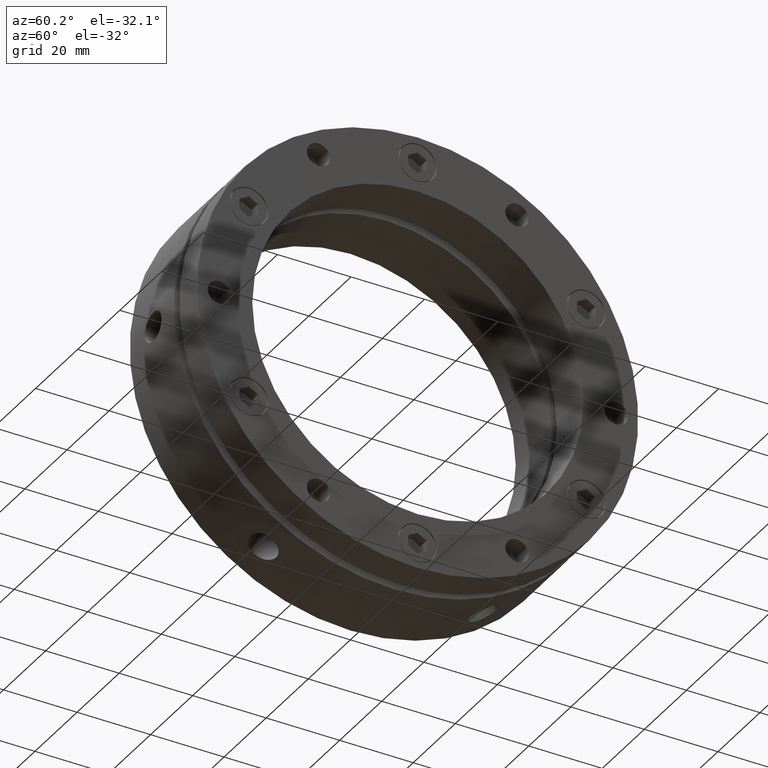
[diagram: clean part render]
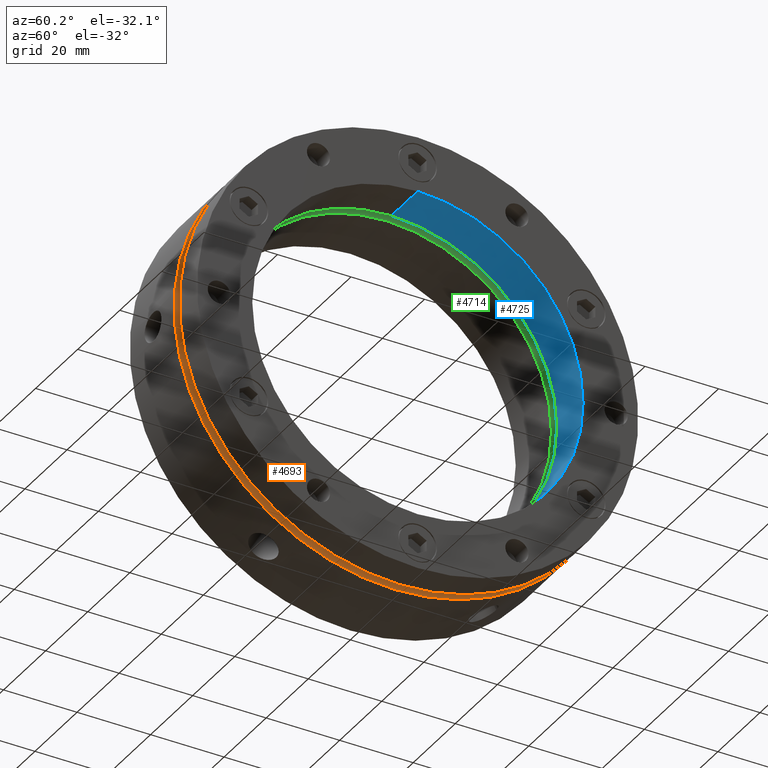
[diagram: same view with three faces highlighted in distinct colors, each labeled with its STEP entity id]
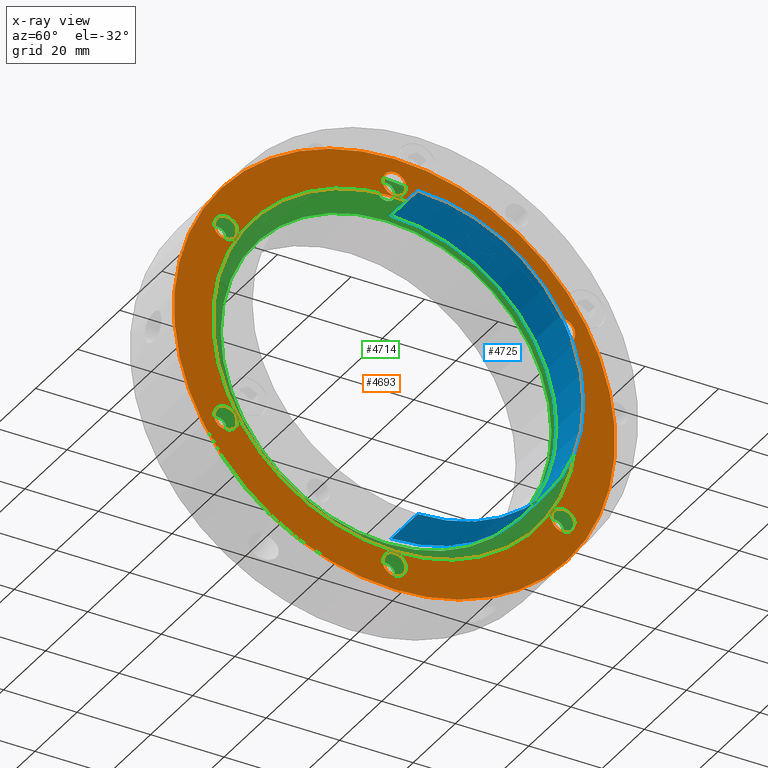
[diagram: x-ray of the same camera — body ghosted, the three highlighted faces saturated]
A machine part, auxiliary view with three faces highlighted in distinct colors.
The next image is the same camera in x-ray (body ghosted, the three faces saturated) — at least one of them is partly hidden behind the body in this view.
Their STEP definitions:

[orange] entity #4693 — the highlighted planar face has unit normal (-1, 0, 0).
#28 = CARTESIAN_POINT ( 'NONE',  ( 20.99999999999999300, 0.0000000000000000000, 0.0000000000000000000 ) ) ;
#29 = DIRECTION ( 'NONE',  ( 1.000000000000000000, -0.0000000000000000000, -0.0000000000000000000 ) ) ;
#30 = DIRECTION ( 'NONE',  ( 0.0000000000000000000, 0.0000000000000000000, 1.000000000000000000 ) ) ;
#42 = CARTESIAN_POINT ( 'NONE',  ( 20.99999999999999300, 0.0000000000000000000, 53.00000000000002800 ) ) ;
#43 = DIRECTION ( 'NONE',  ( 1.000000000000000000, 0.0000000000000000000, 0.0000000000000000000 ) ) ;
#44 = DIRECTION ( 'NONE',  ( 0.0000000000000000000, 0.0000000000000000000, -1.000000000000000000 ) ) ;
#52 = CARTESIAN_POINT ( 'NONE',  ( 20.99999999999999300, -45.89934640057526800, 26.50000000000001800 ) ) ;
#53 = DIRECTION ( 'NONE',  ( 1.000000000000000000, 0.0000000000000000000, 0.0000000000000000000 ) ) ;
#54 = DIRECTION ( 'NONE',  ( 0.0000000000000000000, 0.0000000000000000000, -1.000000000000000000 ) ) ;
#62 = CARTESIAN_POINT ( 'NONE',  ( 20.99999999999999300, -45.89934640057527600, -26.50000000000000400 ) ) ;
#63 = DIRECTION ( 'NONE',  ( 1.000000000000000000, 0.0000000000000000000, 0.0000000000000000000 ) ) ;
#64 = DIRECTION ( 'NONE',  ( 0.0000000000000000000, 0.0000000000000000000, -1.000000000000000000 ) ) ;
#72 = CARTESIAN_POINT ( 'NONE',  ( 20.99999999999999300, -8.881783999999999800E-015, -53.00000000000002800 ) ) ;
#73 = DIRECTION ( 'NONE',  ( 1.000000000000000000, 0.0000000000000000000, 0.0000000000000000000 ) ) ;
#74 = DIRECTION ( 'NONE',  ( 0.0000000000000000000, 0.0000000000000000000, -1.000000000000000000 ) ) ;
#82 = CARTESIAN_POINT ( 'NONE',  ( 20.99999999999999300, 45.89934640057525400, -26.50000000000003900 ) ) ;
#83 = DIRECTION ( 'NONE',  ( 1.000000000000000000, 0.0000000000000000000, 0.0000000000000000000 ) ) ;
#84 = DIRECTION ( 'NONE',  ( 0.0000000000000000000, 0.0000000000000000000, -1.000000000000000000 ) ) ;
#94 = CARTESIAN_POINT ( 'NONE',  ( 20.99999999999999300, 45.89934640057529700, 26.49999999999997900 ) ) ;
#95 = DIRECTION ( 'NONE',  ( 1.000000000000000000, 0.0000000000000000000, 0.0000000000000000000 ) ) ;
#96 = DIRECTION ( 'NONE',  ( 0.0000000000000000000, 0.0000000000000000000, -1.000000000000000000 ) ) ;
#209 = CARTESIAN_POINT ( 'NONE',  ( 20.99999999999999300, 0.0000000000000000000, 0.0000000000000000000 ) ) ;
#210 = DIRECTION ( 'NONE',  ( -1.000000000000000000, -0.0000000000000000000, -0.0000000000000000000 ) ) ;
#211 = DIRECTION ( 'NONE',  ( 0.0000000000000000000, 0.0000000000000000000, -1.000000000000000000 ) ) ;
#369 = CIRCLE ( 'NONE', #911, 3.249999999999999600 ) ;
#373 = CIRCLE ( 'NONE', #915, 3.250000000000002700 ) ;
#387 = CIRCLE ( 'NONE', #917, 49.50000000000000000 ) ;
#394 = CIRCLE ( 'NONE', #913, 3.249999999999999600 ) ;
#535 = EDGE_LOOP ( 'NONE', ( #634, #633 ) ) ;
#536 = EDGE_LOOP ( 'NONE', ( #640, #639 ) ) ;
#543 = EDGE_LOOP ( 'NONE', ( #638, #637 ) ) ;
#544 = EDGE_LOOP ( 'NONE', ( #636, #635 ) ) ;
#551 = EDGE_LOOP ( 'NONE', ( #632, #631 ) ) ;
#552 = EDGE_LOOP ( 'NONE', ( #630, #629 ) ) ;
#553 = EDGE_LOOP ( 'NONE', ( #628, #627 ) ) ;
#554 = EDGE_LOOP ( 'NONE', ( #626, #625 ) ) ;
#625 = ORIENTED_EDGE ( 'NONE', *, *, #4242, .F. ) ;
#626 = ORIENTED_EDGE ( 'NONE', *, *, #4184, .F. ) ;
#627 = ORIENTED_EDGE ( 'NONE', *, *, #957, .F. ) ;
#628 = ORIENTED_EDGE ( 'NONE', *, *, #4322, .F. ) ;
#629 = ORIENTED_EDGE ( 'NONE', *, *, #953, .F. ) ;
#630 = ORIENTED_EDGE ( 'NONE', *, *, #4323, .F. ) ;
#631 = ORIENTED_EDGE ( 'NONE', *, *, #949, .F. ) ;
#632 = ORIENTED_EDGE ( 'NONE', *, *, #4324, .F. ) ;
#633 = ORIENTED_EDGE ( 'NONE', *, *, #945, .F. ) ;
#634 = ORIENTED_EDGE ( 'NONE', *, *, #4325, .F. ) ;
#635 = ORIENTED_EDGE ( 'NONE', *, *, #941, .F. ) ;
#636 = ORIENTED_EDGE ( 'NONE', *, *, #4326, .F. ) ;
#637 = ORIENTED_EDGE ( 'NONE', *, *, #937, .F. ) ;
#638 = ORIENTED_EDGE ( 'NONE', *, *, #4327, .F. ) ;
#639 = ORIENTED_EDGE ( 'NONE', *, *, #931, .F. ) ;
#640 = ORIENTED_EDGE ( 'NONE', *, *, #4328, .F. ) ;
#679 = AXIS2_PLACEMENT_3D ( 'NONE', #3179, #3177, #3183 ) ;
#808 = AXIS2_PLACEMENT_3D ( 'NONE', #1609, #1610, #1611 ) ;
#809 = AXIS2_PLACEMENT_3D ( 'NONE', #1606, #1607, #1608 ) ;
#810 = AXIS2_PLACEMENT_3D ( 'NONE', #1603, #1604, #1605 ) ;
#811 = AXIS2_PLACEMENT_3D ( 'NONE', #1600, #1601, #1602 ) ;
#812 = AXIS2_PLACEMENT_3D ( 'NONE', #1597, #1598, #1599 ) ;
#813 = AXIS2_PLACEMENT_3D ( 'NONE', #1594, #1595, #1596 ) ;
#814 = AXIS2_PLACEMENT_3D ( 'NONE', #1591, #1592, #1593 ) ;
#871 = AXIS2_PLACEMENT_3D ( 'NONE', #1276, #1277, #1278 ) ;
#898 = AXIS2_PLACEMENT_3D ( 'NONE', #209, #210, #211 ) ;
#905 = AXIS2_PLACEMENT_3D ( 'NONE', #94, #95, #96 ) ;
#907 = AXIS2_PLACEMENT_3D ( 'NONE', #82, #83, #84 ) ;
#909 = AXIS2_PLACEMENT_3D ( 'NONE', #72, #73, #74 ) ;
#911 = AXIS2_PLACEMENT_3D ( 'NONE', #62, #63, #64 ) ;
#913 = AXIS2_PLACEMENT_3D ( 'NONE', #52, #53, #54 ) ;
#915 = AXIS2_PLACEMENT_3D ( 'NONE', #42, #43, #44 ) ;
#917 = AXIS2_PLACEMENT_3D ( 'NONE', #28, #29, #30 ) ;
#931 = EDGE_CURVE ( 'NONE', #4503, #4502, #387, .T. ) ;
#937 = EDGE_CURVE ( 'NONE', #4478, #4476, #373, .T. ) ;
#941 = EDGE_CURVE ( 'NONE', #4482, #4427, #394, .T. ) ;
#945 = EDGE_CURVE ( 'NONE', #4493, #4357, #369, .T. ) ;
#949 = EDGE_CURVE ( 'NONE', #4375, #4421, #3992, .T. ) ;
#953 = EDGE_CURVE ( 'NONE', #4404, #4403, #3978, .T. ) ;
#957 = EDGE_CURVE ( 'NONE', #4389, #4384, #3982, .T. ) ;
#1276 = CARTESIAN_POINT ( 'NONE',  ( 20.99999999999999300, 0.0000000000000000000, 0.0000000000000000000 ) ) ;
#1277 = DIRECTION ( 'NONE',  ( -1.000000000000000000, -0.0000000000000000000, -0.0000000000000000000 ) ) ;
#1278 = DIRECTION ( 'NONE',  ( 0.0000000000000000000, 0.0000000000000000000, -1.000000000000000000 ) ) ;
#1591 = CARTESIAN_POINT ( 'NONE',  ( 20.99999999999999300, 45.89934640057529700, 26.49999999999997900 ) ) ;
#1592 = DIRECTION ( 'NONE',  ( 1.000000000000000000, 0.0000000000000000000, 0.0000000000000000000 ) ) ;
#1593 = DIRECTION ( 'NONE',  ( 0.0000000000000000000, 0.0000000000000000000, -1.000000000000000000 ) ) ;
#1594 = CARTESIAN_POINT ( 'NONE',  ( 20.99999999999999300, 45.89934640057525400, -26.50000000000003900 ) ) ;
#1595 = DIRECTION ( 'NONE',  ( 1.000000000000000000, 0.0000000000000000000, 0.0000000000000000000 ) ) ;
#1596 = DIRECTION ( 'NONE',  ( 0.0000000000000000000, 0.0000000000000000000, -1.000000000000000000 ) ) ;
#1597 = CARTESIAN_POINT ( 'NONE',  ( 20.99999999999999300, -8.881783999999999800E-015, -53.00000000000002800 ) ) ;
#1598 = DIRECTION ( 'NONE',  ( 1.000000000000000000, 0.0000000000000000000, 0.0000000000000000000 ) ) ;
#1599 = DIRECTION ( 'NONE',  ( 0.0000000000000000000, 0.0000000000000000000, -1.000000000000000000 ) ) ;
#1600 = CARTESIAN_POINT ( 'NONE',  ( 20.99999999999999300, -45.89934640057527600, -26.50000000000000400 ) ) ;
#1601 = DIRECTION ( 'NONE',  ( 1.000000000000000000, 0.0000000000000000000, 0.0000000000000000000 ) ) ;
#1602 = DIRECTION ( 'NONE',  ( 0.0000000000000000000, 0.0000000000000000000, -1.000000000000000000 ) ) ;
#1603 = CARTESIAN_POINT ( 'NONE',  ( 20.99999999999999300, -45.89934640057526800, 26.50000000000001800 ) ) ;
#1604 = DIRECTION ( 'NONE',  ( 1.000000000000000000, 0.0000000000000000000, 0.0000000000000000000 ) ) ;
#1605 = DIRECTION ( 'NONE',  ( 0.0000000000000000000, 0.0000000000000000000, -1.000000000000000000 ) ) ;
#1606 = CARTESIAN_POINT ( 'NONE',  ( 20.99999999999999300, 0.0000000000000000000, 53.00000000000002800 ) ) ;
#1607 = DIRECTION ( 'NONE',  ( 1.000000000000000000, 0.0000000000000000000, 0.0000000000000000000 ) ) ;
#1608 = DIRECTION ( 'NONE',  ( 0.0000000000000000000, 0.0000000000000000000, -1.000000000000000000 ) ) ;
#1609 = CARTESIAN_POINT ( 'NONE',  ( 20.99999999999999300, 0.0000000000000000000, 0.0000000000000000000 ) ) ;
#1610 = DIRECTION ( 'NONE',  ( 1.000000000000000000, -0.0000000000000000000, -0.0000000000000000000 ) ) ;
#1611 = DIRECTION ( 'NONE',  ( 0.0000000000000000000, 0.0000000000000000000, 1.000000000000000000 ) ) ;
#1779 = CARTESIAN_POINT ( 'NONE',  ( 20.99999999999999300, -45.89934640057527600, -29.75000000000000400 ) ) ;
#1784 = CARTESIAN_POINT ( 'NONE',  ( 20.99999999999999300, -8.483773790277109000E-015, -49.75000000000002100 ) ) ;
#1789 = CARTESIAN_POINT ( 'NONE',  ( 20.99999999999999300, 45.89934640057529700, 23.24999999999997900 ) ) ;
#1791 = CARTESIAN_POINT ( 'NONE',  ( 20.99999999999999300, 45.89934640057529700, 29.74999999999997900 ) ) ;
#1797 = CARTESIAN_POINT ( 'NONE',  ( 20.99999999999999300, 45.89934640057525400, -29.75000000000003600 ) ) ;
#1798 = CARTESIAN_POINT ( 'NONE',  ( 20.99999999999999300, 45.89934640057525400, -23.25000000000003900 ) ) ;
#1812 = CARTESIAN_POINT ( 'NONE',  ( 20.99999999999999300, -8.881783999999999800E-015, -56.25000000000002800 ) ) ;
#1818 = CARTESIAN_POINT ( 'NONE',  ( 20.99999999999999300, -45.89934640057526800, 23.25000000000001800 ) ) ;
#1842 = CARTESIAN_POINT ( 'NONE',  ( 20.99999999999999300, 7.347880794884118400E-015, 60.00000000000000000 ) ) ;
#1843 = CARTESIAN_POINT ( 'NONE',  ( 20.99999999999999300, 0.0000000000000000000, -60.00000000000000000 ) ) ;
#1866 = CARTESIAN_POINT ( 'NONE',  ( 20.99999999999999300, 0.0000000000000000000, 49.75000000000002100 ) ) ;
#1868 = CARTESIAN_POINT ( 'NONE',  ( 20.99999999999999300, 3.980102097228895300E-016, 56.25000000000002800 ) ) ;
#1872 = CARTESIAN_POINT ( 'NONE',  ( 20.99999999999999300, -45.89934640057526800, 29.75000000000001800 ) ) ;
#1882 = CARTESIAN_POINT ( 'NONE',  ( 20.99999999999999300, -45.89934640057527600, -23.25000000000000400 ) ) ;
#1889 = CARTESIAN_POINT ( 'NONE',  ( 20.99999999999999300, 0.0000000000000000000, 49.50000000000000000 ) ) ;
#1890 = CARTESIAN_POINT ( 'NONE',  ( 20.99999999999999300, 6.062001655779398500E-015, -49.50000000000000000 ) ) ;
#2280 = CIRCLE ( 'NONE', #871, 60.00000000000000000 ) ;
#2371 = CIRCLE ( 'NONE', #814, 3.249999999999999600 ) ;
#2373 = CIRCLE ( 'NONE', #813, 3.249999999999999600 ) ;
#2374 = CIRCLE ( 'NONE', #812, 3.250000000000002700 ) ;
#2375 = CIRCLE ( 'NONE', #811, 3.249999999999999600 ) ;
#2376 = CIRCLE ( 'NONE', #810, 3.249999999999999600 ) ;
#2377 = CIRCLE ( 'NONE', #809, 3.250000000000002700 ) ;
#2378 = CIRCLE ( 'NONE', #808, 49.50000000000000000 ) ;
#2681 = FACE_BOUND ( 'NONE', #536, .T. ) ;
#2683 = FACE_BOUND ( 'NONE', #535, .T. ) ;
#2685 = FACE_BOUND ( 'NONE', #544, .T. ) ;
#2687 = FACE_BOUND ( 'NONE', #551, .T. ) ;
#2689 = FACE_BOUND ( 'NONE', #543, .T. ) ;
#2690 = FACE_BOUND ( 'NONE', #552, .T. ) ;
#2691 = FACE_BOUND ( 'NONE', #553, .T. ) ;
#2692 = FACE_OUTER_BOUND ( 'NONE', #554, .T. ) ;
#3177 = DIRECTION ( 'NONE',  ( -1.000000000000000000, 0.0000000000000000000, 0.0000000000000000000 ) ) ;
#3179 = CARTESIAN_POINT ( 'NONE',  ( 20.99999999999999300, 54.75000000000000000, 0.0000000000000000000 ) ) ;
#3181 = PLANE ( 'NONE',  #679 ) ;
#3183 = DIRECTION ( 'NONE',  ( 0.0000000000000000000, 0.0000000000000000000, 1.000000000000000000 ) ) ;
#3978 = CIRCLE ( 'NONE', #907, 3.249999999999999600 ) ;
#3980 = CIRCLE ( 'NONE', #898, 60.00000000000000000 ) ;
#3982 = CIRCLE ( 'NONE', #905, 3.249999999999999600 ) ;
#3992 = CIRCLE ( 'NONE', #909, 3.250000000000002700 ) ;
#4184 = EDGE_CURVE ( 'NONE', #4452, #4451, #3980, .T. ) ;
#4242 = EDGE_CURVE ( 'NONE', #4451, #4452, #2280, .T. ) ;
#4322 = EDGE_CURVE ( 'NONE', #4384, #4389, #2371, .T. ) ;
#4323 = EDGE_CURVE ( 'NONE', #4403, #4404, #2373, .T. ) ;
#4324 = EDGE_CURVE ( 'NONE', #4421, #4375, #2374, .T. ) ;
#4325 = EDGE_CURVE ( 'NONE', #4357, #4493, #2375, .T. ) ;
#4326 = EDGE_CURVE ( 'NONE', #4427, #4482, #2376, .T. ) ;
#4327 = EDGE_CURVE ( 'NONE', #4476, #4478, #2377, .T. ) ;
#4328 = EDGE_CURVE ( 'NONE', #4502, #4503, #2378, .T. ) ;
#4357 = VERTEX_POINT ( 'NONE', #1779 ) ;
#4375 = VERTEX_POINT ( 'NONE', #1784 ) ;
#4384 = VERTEX_POINT ( 'NONE', #1789 ) ;
#4389 = VERTEX_POINT ( 'NONE', #1791 ) ;
#4403 = VERTEX_POINT ( 'NONE', #1797 ) ;
#4404 = VERTEX_POINT ( 'NONE', #1798 ) ;
#4421 = VERTEX_POINT ( 'NONE', #1812 ) ;
#4427 = VERTEX_POINT ( 'NONE', #1818 ) ;
#4451 = VERTEX_POINT ( 'NONE', #1842 ) ;
#4452 = VERTEX_POINT ( 'NONE', #1843 ) ;
#4476 = VERTEX_POINT ( 'NONE', #1866 ) ;
#4478 = VERTEX_POINT ( 'NONE', #1868 ) ;
#4482 = VERTEX_POINT ( 'NONE', #1872 ) ;
#4493 = VERTEX_POINT ( 'NONE', #1882 ) ;
#4502 = VERTEX_POINT ( 'NONE', #1889 ) ;
#4503 = VERTEX_POINT ( 'NONE', #1890 ) ;
#4693 = ADVANCED_FACE ( 'NONE', ( #2681, #2689, #2685, #2683, #2687, #2690, #2691, #2692 ), #3181, .F. ) ;

[blue] entity #4725 — the highlighted cylindrical surface (partial cylindrical patch) has radius 45 mm, axis along (1, 0, 0).
#161 = CARTESIAN_POINT ( 'NONE',  ( 31.99999999999998600, 5.510910596163089600E-015, 45.00000000000000000 ) ) ;
#162 = CARTESIAN_POINT ( 'NONE',  ( 31.99999999999998600, 0.0000000000000000000, -45.00000000000000000 ) ) ;
#166 = CARTESIAN_POINT ( 'NONE',  ( 19.50000000000000000, 5.510910596163089600E-015, 45.00000000000000000 ) ) ;
#167 = CARTESIAN_POINT ( 'NONE',  ( 19.50000000000000000, 0.0000000000000000000, -45.00000000000000000 ) ) ;
#501 = EDGE_LOOP ( 'NONE', ( #2175, #4106, #4108, #4174 ) ) ;
#648 = AXIS2_PLACEMENT_3D ( 'NONE', #3281, #3279, #3277 ) ;
#854 = AXIS2_PLACEMENT_3D ( 'NONE', #1519, #1520, #1521 ) ;
#872 = AXIS2_PLACEMENT_3D ( 'NONE', #1495, #1496, #1497 ) ;
#1495 = CARTESIAN_POINT ( 'NONE',  ( 31.99999999999998600, 0.0000000000000000000, 0.0000000000000000000 ) ) ;
#1496 = DIRECTION ( 'NONE',  ( -1.000000000000000000, -0.0000000000000000000, -0.0000000000000000000 ) ) ;
#1497 = DIRECTION ( 'NONE',  ( 0.0000000000000000000, 0.0000000000000000000, -1.000000000000000000 ) ) ;
#1519 = CARTESIAN_POINT ( 'NONE',  ( 19.50000000000000000, 0.0000000000000000000, 0.0000000000000000000 ) ) ;
#1520 = DIRECTION ( 'NONE',  ( -1.000000000000000000, -0.0000000000000000000, -0.0000000000000000000 ) ) ;
#1521 = DIRECTION ( 'NONE',  ( 0.0000000000000000000, 0.0000000000000000000, -1.000000000000000000 ) ) ;
#1973 = DIRECTION ( 'NONE',  ( 1.000000000000000000, 0.0000000000000000000, 0.0000000000000000000 ) ) ;
#1983 = CARTESIAN_POINT ( 'NONE',  ( 15.99999999999998600, 5.510910596163089600E-015, 45.00000000000000000 ) ) ;
#1988 = CARTESIAN_POINT ( 'NONE',  ( 15.99999999999998600, 0.0000000000000000000, -45.00000000000000000 ) ) ;
#1989 = DIRECTION ( 'NONE',  ( 1.000000000000000000, 0.0000000000000000000, 0.0000000000000000000 ) ) ;
#2175 = ORIENTED_EDGE ( 'NONE', *, *, #4542, .F. ) ;
#2339 = CIRCLE ( 'NONE', #872, 45.00000000000000000 ) ;
#2347 = CIRCLE ( 'NONE', #854, 45.00000000000000000 ) ;
#2462 = LINE ( 'NONE', #1983, #2466 ) ;
#2466 = VECTOR ( 'NONE', #1989, 1000.000000000000000 ) ;
#2467 = LINE ( 'NONE', #1988, #2469 ) ;
#2469 = VECTOR ( 'NONE', #1973, 1000.000000000000000 ) ;
#2769 = FACE_OUTER_BOUND ( 'NONE', #501, .T. ) ;
#2778 = CYLINDRICAL_SURFACE ( 'NONE', #648, 45.00000000000000000 ) ;
#3277 = DIRECTION ( 'NONE',  ( 0.0000000000000000000, 0.0000000000000000000, -1.000000000000000000 ) ) ;
#3279 = DIRECTION ( 'NONE',  ( 1.000000000000000000, 0.0000000000000000000, 0.0000000000000000000 ) ) ;
#3281 = CARTESIAN_POINT ( 'NONE',  ( 15.99999999999998600, 0.0000000000000000000, 0.0000000000000000000 ) ) ;
#3885 = VERTEX_POINT ( 'NONE', #161 ) ;
#3886 = VERTEX_POINT ( 'NONE', #162 ) ;
#3890 = VERTEX_POINT ( 'NONE', #166 ) ;
#3891 = VERTEX_POINT ( 'NONE', #167 ) ;
#4106 = ORIENTED_EDGE ( 'NONE', *, *, #4298, .T. ) ;
#4108 = ORIENTED_EDGE ( 'NONE', *, *, #4544, .T. ) ;
#4174 = ORIENTED_EDGE ( 'NONE', *, *, #4290, .F. ) ;
#4290 = EDGE_CURVE ( 'NONE', #3885, #3886, #2339, .T. ) ;
#4298 = EDGE_CURVE ( 'NONE', #3890, #3891, #2347, .T. ) ;
#4542 = EDGE_CURVE ( 'NONE', #3890, #3885, #2462, .T. ) ;
#4544 = EDGE_CURVE ( 'NONE', #3891, #3886, #2467, .T. ) ;
#4725 = ADVANCED_FACE ( 'NONE', ( #2769 ), #2778, .F. ) ;

[green] entity #4714 — the highlighted planar face has unit normal (-1, 0, 0).
#98 = CARTESIAN_POINT ( 'NONE',  ( 17.00000000000000000, 0.0000000000000000000, 56.50000000000000000 ) ) ;
#521 = EDGE_LOOP ( 'NONE', ( #4103, #4102 ) ) ;
#525 = EDGE_LOOP ( 'NONE', ( #4097, #4096 ) ) ;
#526 = EDGE_LOOP ( 'NONE', ( #4105, #4104 ) ) ;
#527 = EDGE_LOOP ( 'NONE', ( #4101, #4100 ) ) ;
#528 = EDGE_LOOP ( 'NONE', ( #4109, #4107 ) ) ;
#529 = EDGE_LOOP ( 'NONE', ( #4095, #4094 ) ) ;
#530 = EDGE_LOOP ( 'NONE', ( #4099, #4098 ) ) ;
#531 = EDGE_LOOP ( 'NONE', ( #4093, #4092 ) ) ;
#659 = AXIS2_PLACEMENT_3D ( 'NONE', #3243, #3241, #3246 ) ;
#752 = AXIS2_PLACEMENT_3D ( 'NONE', #2957, #2958, #2959 ) ;
#754 = AXIS2_PLACEMENT_3D ( 'NONE', #2947, #2948, #2949 ) ;
#756 = AXIS2_PLACEMENT_3D ( 'NONE', #2937, #2938, #2939 ) ;
#758 = AXIS2_PLACEMENT_3D ( 'NONE', #2920, #2921, #2922 ) ;
#791 = AXIS2_PLACEMENT_3D ( 'NONE', #1896, #1897, #1898 ) ;
#793 = AXIS2_PLACEMENT_3D ( 'NONE', #1771, #1772, #1773 ) ;
#795 = AXIS2_PLACEMENT_3D ( 'NONE', #1727, #1728, #1729 ) ;
#796 = AXIS2_PLACEMENT_3D ( 'NONE', #1720, #1721, #1722 ) ;
#815 = AXIS2_PLACEMENT_3D ( 'NONE', #1588, #1589, #1590 ) ;
#816 = AXIS2_PLACEMENT_3D ( 'NONE', #1585, #1586, #1587 ) ;
#817 = AXIS2_PLACEMENT_3D ( 'NONE', #1582, #1583, #1584 ) ;
#818 = AXIS2_PLACEMENT_3D ( 'NONE', #1579, #1580, #1581 ) ;
#819 = AXIS2_PLACEMENT_3D ( 'NONE', #1576, #1577, #1578 ) ;
#820 = AXIS2_PLACEMENT_3D ( 'NONE', #1573, #1574, #1575 ) ;
#821 = AXIS2_PLACEMENT_3D ( 'NONE', #1570, #1571, #1572 ) ;
#836 = AXIS2_PLACEMENT_3D ( 'NONE', #1546, #1547, #1548 ) ;
#1546 = CARTESIAN_POINT ( 'NONE',  ( 17.00000000000000000, 0.0000000000000000000, 0.0000000000000000000 ) ) ;
#1547 = DIRECTION ( 'NONE',  ( -1.000000000000000000, 0.0000000000000000000, 0.0000000000000000000 ) ) ;
#1548 = DIRECTION ( 'NONE',  ( 0.0000000000000000000, 0.0000000000000000000, 1.000000000000000000 ) ) ;
#1570 = CARTESIAN_POINT ( 'NONE',  ( 17.00000000000000700, 0.0000000000000000000, 0.0000000000000000000 ) ) ;
#1571 = DIRECTION ( 'NONE',  ( -1.000000000000000000, -0.0000000000000000000, -0.0000000000000000000 ) ) ;
#1572 = DIRECTION ( 'NONE',  ( 0.0000000000000000000, 0.0000000000000000000, -1.000000000000000000 ) ) ;
#1573 = CARTESIAN_POINT ( 'NONE',  ( 17.00000000000000700, 0.0000000000000000000, 53.00000000000002800 ) ) ;
#1574 = DIRECTION ( 'NONE',  ( -1.000000000000000000, 0.0000000000000000000, 0.0000000000000000000 ) ) ;
#1575 = DIRECTION ( 'NONE',  ( 0.0000000000000000000, 0.0000000000000000000, 1.000000000000000000 ) ) ;
#1576 = CARTESIAN_POINT ( 'NONE',  ( 17.00000000000000700, -45.89934640057526800, 26.50000000000001800 ) ) ;
#1577 = DIRECTION ( 'NONE',  ( -1.000000000000000000, 0.0000000000000000000, 0.0000000000000000000 ) ) ;
#1578 = DIRECTION ( 'NONE',  ( 0.0000000000000000000, 0.0000000000000000000, 1.000000000000000000 ) ) ;
#1579 = CARTESIAN_POINT ( 'NONE',  ( 17.00000000000000700, -45.89934640057527600, -26.50000000000000400 ) ) ;
#1580 = DIRECTION ( 'NONE',  ( -1.000000000000000000, 0.0000000000000000000, 0.0000000000000000000 ) ) ;
#1581 = DIRECTION ( 'NONE',  ( 0.0000000000000000000, 0.0000000000000000000, 1.000000000000000000 ) ) ;
#1582 = CARTESIAN_POINT ( 'NONE',  ( 17.00000000000000700, -8.881783999999999800E-015, -53.00000000000002800 ) ) ;
#1583 = DIRECTION ( 'NONE',  ( -1.000000000000000000, 0.0000000000000000000, 0.0000000000000000000 ) ) ;
#1584 = DIRECTION ( 'NONE',  ( 0.0000000000000000000, 0.0000000000000000000, 1.000000000000000000 ) ) ;
#1585 = CARTESIAN_POINT ( 'NONE',  ( 17.00000000000000700, 45.89934640057525400, -26.50000000000003900 ) ) ;
#1586 = DIRECTION ( 'NONE',  ( -1.000000000000000000, 0.0000000000000000000, 0.0000000000000000000 ) ) ;
#1587 = DIRECTION ( 'NONE',  ( 0.0000000000000000000, 0.0000000000000000000, 1.000000000000000000 ) ) ;
#1588 = CARTESIAN_POINT ( 'NONE',  ( 17.00000000000000700, 45.89934640057529700, 26.49999999999997900 ) ) ;
#1589 = DIRECTION ( 'NONE',  ( -1.000000000000000000, 0.0000000000000000000, 0.0000000000000000000 ) ) ;
#1590 = DIRECTION ( 'NONE',  ( 0.0000000000000000000, 0.0000000000000000000, 1.000000000000000000 ) ) ;
#1720 = CARTESIAN_POINT ( 'NONE',  ( 17.00000000000000700, 0.0000000000000000000, 0.0000000000000000000 ) ) ;
#1721 = DIRECTION ( 'NONE',  ( -1.000000000000000000, -0.0000000000000000000, -0.0000000000000000000 ) ) ;
#1722 = DIRECTION ( 'NONE',  ( 0.0000000000000000000, 0.0000000000000000000, -1.000000000000000000 ) ) ;
#1727 = CARTESIAN_POINT ( 'NONE',  ( 17.00000000000000700, 0.0000000000000000000, 53.00000000000002800 ) ) ;
#1728 = DIRECTION ( 'NONE',  ( -1.000000000000000000, 0.0000000000000000000, 0.0000000000000000000 ) ) ;
#1729 = DIRECTION ( 'NONE',  ( 0.0000000000000000000, 0.0000000000000000000, 1.000000000000000000 ) ) ;
#1769 = CARTESIAN_POINT ( 'NONE',  ( 17.00000000000000000, 6.919254415182545300E-015, -56.50000000000000000 ) ) ;
#1770 = CARTESIAN_POINT ( 'NONE',  ( 17.00000000000000700, 5.510910596163089600E-015, 45.00000000000000000 ) ) ;
#1771 = CARTESIAN_POINT ( 'NONE',  ( 17.00000000000000700, -45.89934640057526800, 26.50000000000001800 ) ) ;
#1772 = DIRECTION ( 'NONE',  ( -1.000000000000000000, 0.0000000000000000000, 0.0000000000000000000 ) ) ;
#1773 = DIRECTION ( 'NONE',  ( 0.0000000000000000000, 0.0000000000000000000, 1.000000000000000000 ) ) ;
#1774 = CARTESIAN_POINT ( 'NONE',  ( 17.00000000000000700, -45.89934640057526800, 24.04150000000001700 ) ) ;
#1780 = CARTESIAN_POINT ( 'NONE',  ( 17.00000000000000700, 45.89934640057525400, -28.95850000000003600 ) ) ;
#1783 = CARTESIAN_POINT ( 'NONE',  ( 17.00000000000000700, 45.89934640057529700, 24.04149999999997400 ) ) ;
#1808 = CARTESIAN_POINT ( 'NONE',  ( 17.00000000000000700, -8.881783999999999800E-015, -50.54150000000002100 ) ) ;
#1809 = CARTESIAN_POINT ( 'NONE',  ( 17.00000000000000700, -45.89934640057526800, 28.95850000000001500 ) ) ;
#1822 = CARTESIAN_POINT ( 'NONE',  ( 17.00000000000000700, -8.580704584429623500E-015, -55.45850000000002900 ) ) ;
#1826 = CARTESIAN_POINT ( 'NONE',  ( 17.00000000000000700, -45.89934640057527600, -28.95850000000000100 ) ) ;
#1831 = CARTESIAN_POINT ( 'NONE',  ( 17.00000000000000700, 3.010794155703764200E-016, 50.54150000000002100 ) ) ;
#1832 = CARTESIAN_POINT ( 'NONE',  ( 17.00000000000000700, 0.0000000000000000000, 55.45850000000002900 ) ) ;
#1838 = CARTESIAN_POINT ( 'NONE',  ( 17.00000000000000700, 0.0000000000000000000, -45.00000000000000000 ) ) ;
#1846 = CARTESIAN_POINT ( 'NONE',  ( 17.00000000000000700, -45.89934640057527600, -24.04150000000000300 ) ) ;
#1876 = CARTESIAN_POINT ( 'NONE',  ( 17.00000000000000700, 45.89934640057525400, -24.04150000000003800 ) ) ;
#1885 = CARTESIAN_POINT ( 'NONE',  ( 17.00000000000000700, 45.89934640057529700, 28.95849999999997900 ) ) ;
#1896 = CARTESIAN_POINT ( 'NONE',  ( 17.00000000000000000, 0.0000000000000000000, 0.0000000000000000000 ) ) ;
#1897 = DIRECTION ( 'NONE',  ( -1.000000000000000000, 0.0000000000000000000, 0.0000000000000000000 ) ) ;
#1898 = DIRECTION ( 'NONE',  ( 0.0000000000000000000, 0.0000000000000000000, 1.000000000000000000 ) ) ;
#2356 = CIRCLE ( 'NONE', #836, 56.50000000000000000 ) ;
#2357 = CIRCLE ( 'NONE', #820, 2.458500000000002600 ) ;
#2365 = CIRCLE ( 'NONE', #821, 45.00000000000000000 ) ;
#2366 = CIRCLE ( 'NONE', #819, 2.458499999999999000 ) ;
#2367 = CIRCLE ( 'NONE', #818, 2.458499999999999000 ) ;
#2368 = CIRCLE ( 'NONE', #817, 2.458500000000002600 ) ;
#2369 = CIRCLE ( 'NONE', #816, 2.458499999999999000 ) ;
#2370 = CIRCLE ( 'NONE', #815, 2.458500000000002600 ) ;
#2393 = CIRCLE ( 'NONE', #795, 2.458500000000002600 ) ;
#2395 = CIRCLE ( 'NONE', #796, 45.00000000000000000 ) ;
#2406 = CIRCLE ( 'NONE', #793, 2.458499999999999000 ) ;
#2413 = CIRCLE ( 'NONE', #791, 56.50000000000000000 ) ;
#2513 = CIRCLE ( 'NONE', #758, 2.458499999999999000 ) ;
#2527 = CIRCLE ( 'NONE', #756, 2.458500000000002600 ) ;
#2530 = CIRCLE ( 'NONE', #754, 2.458499999999999000 ) ;
#2536 = CIRCLE ( 'NONE', #752, 2.458500000000002600 ) ;
#2729 = FACE_BOUND ( 'NONE', #528, .T. ) ;
#2731 = FACE_BOUND ( 'NONE', #527, .T. ) ;
#2733 = FACE_BOUND ( 'NONE', #521, .T. ) ;
#2735 = FACE_BOUND ( 'NONE', #530, .T. ) ;
#2737 = FACE_BOUND ( 'NONE', #526, .T. ) ;
#2738 = FACE_BOUND ( 'NONE', #525, .T. ) ;
#2739 = FACE_BOUND ( 'NONE', #529, .T. ) ;
#2740 = FACE_OUTER_BOUND ( 'NONE', #531, .T. ) ;
#2920 = CARTESIAN_POINT ( 'NONE',  ( 17.00000000000000700, -45.89934640057527600, -26.50000000000000400 ) ) ;
#2921 = DIRECTION ( 'NONE',  ( -1.000000000000000000, 0.0000000000000000000, 0.0000000000000000000 ) ) ;
#2922 = DIRECTION ( 'NONE',  ( 0.0000000000000000000, 0.0000000000000000000, 1.000000000000000000 ) ) ;
#2937 = CARTESIAN_POINT ( 'NONE',  ( 17.00000000000000700, -8.881783999999999800E-015, -53.00000000000002800 ) ) ;
#2938 = DIRECTION ( 'NONE',  ( -1.000000000000000000, 0.0000000000000000000, 0.0000000000000000000 ) ) ;
#2939 = DIRECTION ( 'NONE',  ( 0.0000000000000000000, 0.0000000000000000000, 1.000000000000000000 ) ) ;
#2947 = CARTESIAN_POINT ( 'NONE',  ( 17.00000000000000700, 45.89934640057525400, -26.50000000000003900 ) ) ;
#2948 = DIRECTION ( 'NONE',  ( -1.000000000000000000, 0.0000000000000000000, 0.0000000000000000000 ) ) ;
#2949 = DIRECTION ( 'NONE',  ( 0.0000000000000000000, 0.0000000000000000000, 1.000000000000000000 ) ) ;
#2957 = CARTESIAN_POINT ( 'NONE',  ( 17.00000000000000700, 45.89934640057529700, 26.49999999999997900 ) ) ;
#2958 = DIRECTION ( 'NONE',  ( -1.000000000000000000, 0.0000000000000000000, 0.0000000000000000000 ) ) ;
#2959 = DIRECTION ( 'NONE',  ( 0.0000000000000000000, 0.0000000000000000000, 1.000000000000000000 ) ) ;
#3241 = DIRECTION ( 'NONE',  ( -1.000000000000000000, 0.0000000000000000000, 0.0000000000000000000 ) ) ;
#3243 = CARTESIAN_POINT ( 'NONE',  ( 17.00000000000000700, 28.25000000000000000, 0.0000000000000000000 ) ) ;
#3244 = PLANE ( 'NONE',  #659 ) ;
#3246 = DIRECTION ( 'NONE',  ( 0.0000000000000000000, 0.0000000000000000000, 1.000000000000000000 ) ) ;
#3763 = VERTEX_POINT ( 'NONE', #98 ) ;
#4092 = ORIENTED_EDGE ( 'NONE', *, *, #4505, .F. ) ;
#4093 = ORIENTED_EDGE ( 'NONE', *, *, #4307, .F. ) ;
#4094 = ORIENTED_EDGE ( 'NONE', *, *, #4590, .T. ) ;
#4095 = ORIENTED_EDGE ( 'NONE', *, *, #4321, .T. ) ;
#4096 = ORIENTED_EDGE ( 'NONE', *, *, #4586, .T. ) ;
#4097 = ORIENTED_EDGE ( 'NONE', *, *, #4320, .T. ) ;
#4098 = ORIENTED_EDGE ( 'NONE', *, *, #4582, .T. ) ;
#4099 = ORIENTED_EDGE ( 'NONE', *, *, #4319, .T. ) ;
#4100 = ORIENTED_EDGE ( 'NONE', *, *, #4574, .T. ) ;
#4101 = ORIENTED_EDGE ( 'NONE', *, *, #4318, .T. ) ;
#4102 = ORIENTED_EDGE ( 'NONE', *, *, #4352, .T. ) ;
#4103 = ORIENTED_EDGE ( 'NONE', *, *, #4317, .T. ) ;
#4104 = ORIENTED_EDGE ( 'NONE', *, *, #4347, .T. ) ;
#4105 = ORIENTED_EDGE ( 'NONE', *, *, #4316, .T. ) ;
#4107 = ORIENTED_EDGE ( 'NONE', *, *, #4315, .T. ) ;
#4109 = ORIENTED_EDGE ( 'NONE', *, *, #4344, .T. ) ;
#4307 = EDGE_CURVE ( 'NONE', #3763, #4358, #2356, .T. ) ;
#4315 = EDGE_CURVE ( 'NONE', #4356, #4447, #2365, .T. ) ;
#4316 = EDGE_CURVE ( 'NONE', #4441, #4440, #2357, .T. ) ;
#4317 = EDGE_CURVE ( 'NONE', #4417, #4371, #2366, .T. ) ;
#4318 = EDGE_CURVE ( 'NONE', #4455, #4435, #2367, .T. ) ;
#4319 = EDGE_CURVE ( 'NONE', #4416, #4431, #2368, .T. ) ;
#4320 = EDGE_CURVE ( 'NONE', #4487, #4359, #2369, .T. ) ;
#4321 = EDGE_CURVE ( 'NONE', #4497, #4374, #2370, .T. ) ;
#4344 = EDGE_CURVE ( 'NONE', #4447, #4356, #2395, .T. ) ;
#4347 = EDGE_CURVE ( 'NONE', #4440, #4441, #2393, .T. ) ;
#4352 = EDGE_CURVE ( 'NONE', #4371, #4417, #2406, .T. ) ;
#4356 = VERTEX_POINT ( 'NONE', #1770 ) ;
#4358 = VERTEX_POINT ( 'NONE', #1769 ) ;
#4359 = VERTEX_POINT ( 'NONE', #1780 ) ;
#4371 = VERTEX_POINT ( 'NONE', #1774 ) ;
#4374 = VERTEX_POINT ( 'NONE', #1783 ) ;
#4416 = VERTEX_POINT ( 'NONE', #1808 ) ;
#4417 = VERTEX_POINT ( 'NONE', #1809 ) ;
#4431 = VERTEX_POINT ( 'NONE', #1822 ) ;
#4435 = VERTEX_POINT ( 'NONE', #1826 ) ;
#4440 = VERTEX_POINT ( 'NONE', #1831 ) ;
#4441 = VERTEX_POINT ( 'NONE', #1832 ) ;
#4447 = VERTEX_POINT ( 'NONE', #1838 ) ;
#4455 = VERTEX_POINT ( 'NONE', #1846 ) ;
#4487 = VERTEX_POINT ( 'NONE', #1876 ) ;
#4497 = VERTEX_POINT ( 'NONE', #1885 ) ;
#4505 = EDGE_CURVE ( 'NONE', #4358, #3763, #2413, .T. ) ;
#4574 = EDGE_CURVE ( 'NONE', #4435, #4455, #2513, .T. ) ;
#4582 = EDGE_CURVE ( 'NONE', #4431, #4416, #2527, .T. ) ;
#4586 = EDGE_CURVE ( 'NONE', #4359, #4487, #2530, .T. ) ;
#4590 = EDGE_CURVE ( 'NONE', #4374, #4497, #2536, .T. ) ;
#4714 = ADVANCED_FACE ( 'NONE', ( #2729, #2737, #2733, #2731, #2735, #2738, #2739, #2740 ), #3244, .F. ) ;